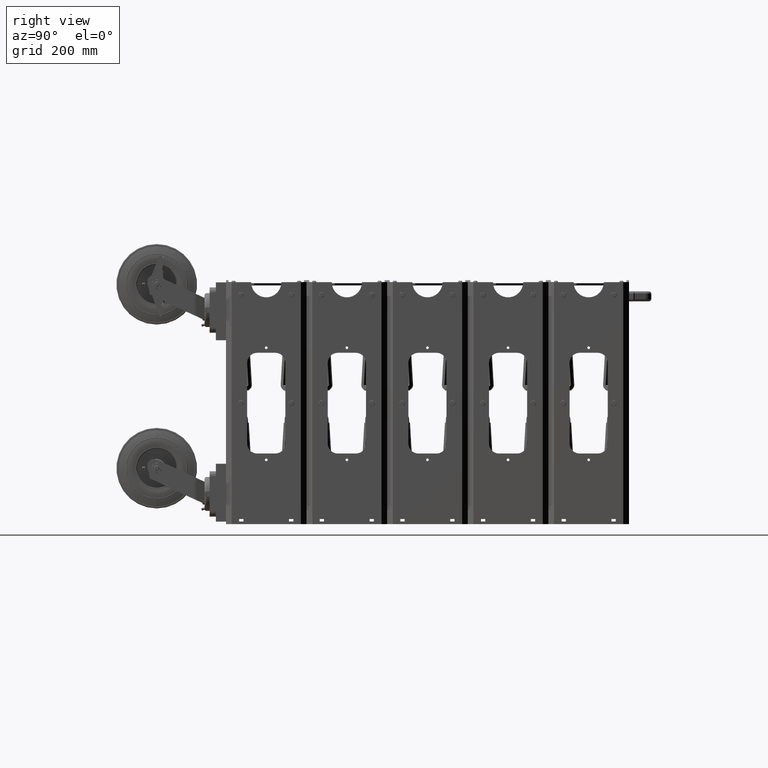
[diagram: clean part render]
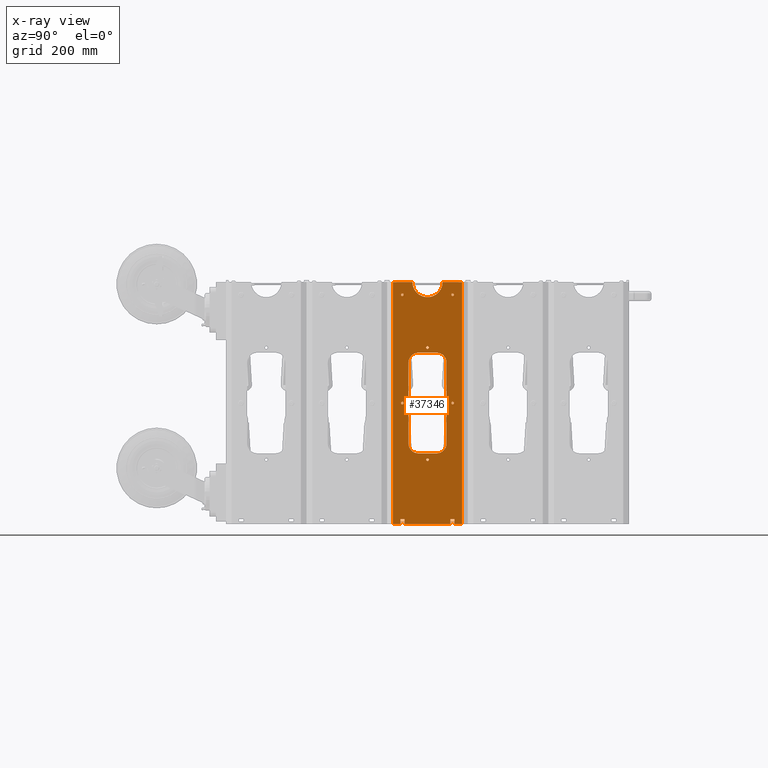
[diagram: x-ray — body ghosted, one internal face saturated and labeled with its STEP entity id]
A machine part, right view, then the same camera in x-ray: the body is ghosted and one INTERNAL B-rep face — a face not visible from any outside direction — is saturated and labeled: STEP entity #37346.
In plain terms, the highlighted planar face has unit normal (-1, 0, 0).
Its self-contained STEP definition (entity closure, byte-faithful):
#203 = EDGE_LOOP ( 'NONE', ( #30047, #30048 ) ) ;
#204 = EDGE_LOOP ( 'NONE', ( #30050, #30052 ) ) ;
#206 = EDGE_LOOP ( 'NONE', ( #30036, #30038 ) ) ;
#221 = EDGE_LOOP ( 'NONE', ( #30044, #30045 ) ) ;
#228 = EDGE_LOOP ( 'NONE', ( #30068, #30069, #30071, #30072, #30074, #30076, #30078, #30079, #30081, #30082, #30084, #30085, #30087, #30088 ) ) ;
#232 = EDGE_LOOP ( 'NONE', ( #30033, #30034 ) ) ;
#237 = EDGE_LOOP ( 'NONE', ( #30040, #30042 ) ) ;
#266 = EDGE_LOOP ( 'NONE', ( #30054, #30056, #30058, #30059, #30061, #30062, #30064, #30066 ) ) ;
#1554 = CARTESIAN_POINT ( 'NONE',  ( 5.682243826821667800E-014, 3.999999999999990200, 5.730000000000000400 ) ) ;
#1556 = DIRECTION ( 'NONE',  ( 4.930380657631323800E-030, -1.000000000000000000, -1.094764425253763300E-047 ) ) ;
#1557 = DIRECTION ( 'NONE',  ( 0.0000000000000000000, 0.0000000000000000000, -1.000000000000000000 ) ) ;
#1564 = CARTESIAN_POINT ( 'NONE',  ( -1.311287036958846300E-013, 3.999999999999990200, -5.394999999999999600 ) ) ;
#1566 = DIRECTION ( 'NONE',  ( 4.930380657631323800E-030, -1.000000000000000000, -1.094764425253763300E-047 ) ) ;
#1567 = DIRECTION ( 'NONE',  ( 0.0000000000000000000, 0.0000000000000000000, -1.000000000000000000 ) ) ;
#1574 = CARTESIAN_POINT ( 'NONE',  ( 2.500000000000070200, 3.999999999999922300, -10.64499999999996000 ) ) ;
#1576 = DIRECTION ( 'NONE',  ( 4.930380657631323800E-030, -1.000000000000000000, -1.094764425253763300E-047 ) ) ;
#1577 = DIRECTION ( 'NONE',  ( 0.0000000000000000000, 0.0000000000000000000, -1.000000000000000000 ) ) ;
#1584 = CARTESIAN_POINT ( 'NONE',  ( -2.499999999999930300, 4.000000000000000900, -10.64500000000003900 ) ) ;
#1586 = DIRECTION ( 'NONE',  ( 4.930380657631323800E-030, -1.000000000000000000, -1.094764425253763300E-047 ) ) ;
#1587 = DIRECTION ( 'NONE',  ( 0.0000000000000000000, 0.0000000000000000000, -1.000000000000000000 ) ) ;
#1594 = CARTESIAN_POINT ( 'NONE',  ( 2.500000000000030600, 3.999999999999922300, 0.1050000000000012000 ) ) ;
#1596 = DIRECTION ( 'NONE',  ( 4.930380657631323800E-030, -1.000000000000000000, -1.094764425253763300E-047 ) ) ;
#1597 = DIRECTION ( 'NONE',  ( 0.0000000000000000000, 0.0000000000000000000, -1.000000000000000000 ) ) ;
#1604 = CARTESIAN_POINT ( 'NONE',  ( -2.499999999999956500, 4.000000000000000900, 0.1050000000000011900 ) ) ;
#1606 = DIRECTION ( 'NONE',  ( 4.930380657631323800E-030, -1.000000000000000000, -1.094764425253763300E-047 ) ) ;
#1607 = DIRECTION ( 'NONE',  ( 0.0000000000000000000, 0.0000000000000000000, -1.000000000000000000 ) ) ;
#1799 = CIRCLE ( 'NONE', #42064, 0.1329999999999999200 ) ;
#1805 = CIRCLE ( 'NONE', #42066, 0.1329999999999999200 ) ;
#1811 = CIRCLE ( 'NONE', #42068, 0.1329999999999999200 ) ;
#1817 = CIRCLE ( 'NONE', #42070, 0.1329999999999999200 ) ;
#1823 = CIRCLE ( 'NONE', #42072, 0.1329999999999997300 ) ;
#1829 = CIRCLE ( 'NONE', #42074, 0.1329999999999997000 ) ;
#1870 = VECTOR ( 'NONE', #3032, 39.37007874015748100 ) ;
#1872 = LINE ( 'NONE', #3031, #1870 ) ;
#1881 = LINE ( 'NONE', #3038, #1886 ) ;
#1886 = VECTOR ( 'NONE', #3042, 39.37007874015748100 ) ;
#1891 = LINE ( 'NONE', #3041, #1893 ) ;
#1892 = CIRCLE ( 'NONE', #42089, 1.000000000000000200 ) ;
#1893 = VECTOR ( 'NONE', #3051, 39.37007874015748100 ) ;
#1898 = CIRCLE ( 'NONE', #42088, 1.000000000000000200 ) ;
#1900 = VECTOR ( 'NONE', #3070, 39.37007874015748100 ) ;
#1902 = LINE ( 'NONE', #3069, #1900 ) ;
#1903 = LINE ( 'NONE', #3061, #1904 ) ;
#1904 = VECTOR ( 'NONE', #3062, 39.37007874015748100 ) ;
#1914 = VECTOR ( 'NONE', #3084, 39.37007874015748100 ) ;
#1915 = LINE ( 'NONE', #3083, #1914 ) ;
#1916 = CIRCLE ( 'NONE', #42092, 1.000000000000000900 ) ;
#1924 = CIRCLE ( 'NONE', #42094, 1.000000000000000200 ) ;
#1931 = CIRCLE ( 'NONE', #42096, 0.1329999999999997000 ) ;
#1932 = CIRCLE ( 'NONE', #42095, 0.1329999999999997300 ) ;
#1934 = CIRCLE ( 'NONE', #42099, 0.1329999999999999200 ) ;
#1935 = CIRCLE ( 'NONE', #42100, 0.1329999999999999200 ) ;
#1939 = CIRCLE ( 'NONE', #42102, 0.1329999999999999200 ) ;
#1943 = CIRCLE ( 'NONE', #42104, 0.1329999999999999200 ) ;
#2023 = LINE ( 'NONE', #3232, #2040 ) ;
#2040 = VECTOR ( 'NONE', #3235, 39.37007874015748100 ) ;
#2041 = VECTOR ( 'NONE', #3272, 39.37007874015748100 ) ;
#2048 = LINE ( 'NONE', #3242, #2049 ) ;
#2049 = VECTOR ( 'NONE', #3243, 39.37007874015748100 ) ;
#2055 = LINE ( 'NONE', #3271, #2041 ) ;
#2056 = LINE ( 'NONE', #3250, #2057 ) ;
#2057 = VECTOR ( 'NONE', #3251, 39.37007874015748100 ) ;
#2064 = LINE ( 'NONE', #3258, #2065 ) ;
#2065 = VECTOR ( 'NONE', #3259, 39.37007874015748100 ) ;
#2073 = LINE ( 'NONE', #3260, #2081 ) ;
#2074 = CIRCLE ( 'NONE', #42107, 1.500000000000000900 ) ;
#2075 = LINE ( 'NONE', #3273, #2076 ) ;
#2076 = VECTOR ( 'NONE', #3274, 39.37007874015748100 ) ;
#2077 = LINE ( 'NONE', #3275, #2078 ) ;
#2078 = VECTOR ( 'NONE', #3276, 39.37007874015748100 ) ;
#2079 = LINE ( 'NONE', #3279, #2080 ) ;
#2080 = VECTOR ( 'NONE', #3281, 39.37007874015748100 ) ;
#2081 = VECTOR ( 'NONE', #3284, 39.37007874015748100 ) ;
#2083 = LINE ( 'NONE', #3287, #2084 ) ;
#2084 = VECTOR ( 'NONE', #3289, 39.37007874015748100 ) ;
#2087 = LINE ( 'NONE', #3296, #2088 ) ;
#2088 = VECTOR ( 'NONE', #3298, 39.37007874015748100 ) ;
#3031 = CARTESIAN_POINT ( 'NONE',  ( -1.894999999999929400, 3.999999999999968500, 4.105000000000010200 ) ) ;
#3032 = DIRECTION ( 'NONE',  ( -2.048885995248197900E-016, 0.0000000000000000000, -1.000000000000000000 ) ) ;
#3038 = CARTESIAN_POINT ( 'NONE',  ( -2.687500000000091900, 4.000000000000000900, 11.60499999999996100 ) ) ;
#3041 = CARTESIAN_POINT ( 'NONE',  ( 2.263499999999871700, 3.999999999999922300, 11.60500000000004000 ) ) ;
#3042 = DIRECTION ( 'NONE',  ( 1.000000000000000000, -4.930380657631323800E-030, 0.0000000000000000000 ) ) ;
#3043 = CARTESIAN_POINT ( 'NONE',  ( -0.8950000000000001300, 3.999999999999990200, -3.895000000000022700 ) ) ;
#3045 = DIRECTION ( 'NONE',  ( 4.930380657631323800E-030, -1.000000000000000000, -1.094764425253763300E-047 ) ) ;
#3046 = DIRECTION ( 'NONE',  ( 0.0000000000000000000, 0.0000000000000000000, 1.000000000000000000 ) ) ;
#3050 = CARTESIAN_POINT ( 'NONE',  ( 0.8950000000000045700, 3.999999999999950700, -3.894999999999977800 ) ) ;
#3051 = DIRECTION ( 'NONE',  ( 1.000000000000000000, -4.930380657631323800E-030, 0.0000000000000000000 ) ) ;
#3054 = DIRECTION ( 'NONE',  ( 4.930380657631323800E-030, -1.000000000000000000, -1.094764425253763300E-047 ) ) ;
#3055 = DIRECTION ( 'NONE',  ( 0.0000000000000000000, 0.0000000000000000000, -1.000000000000000000 ) ) ;
#3061 = CARTESIAN_POINT ( 'NONE',  ( -0.8950000000000001300, 3.999999999999990200, -4.895000000000022700 ) ) ;
#3062 = DIRECTION ( 'NONE',  ( 1.000000000000000000, -4.930380657631323800E-030, 0.0000000000000000000 ) ) ;
#3069 = CARTESIAN_POINT ( 'NONE',  ( 1.895000000000069300, 3.999999999999922300, 4.104999999999990700 ) ) ;
#3070 = DIRECTION ( 'NONE',  ( 0.0000000000000000000, 0.0000000000000000000, 1.000000000000000000 ) ) ;
#3073 = CARTESIAN_POINT ( 'NONE',  ( 0.8950000000000700700, 3.999999999999950700, 4.105000000000020000 ) ) ;
#3075 = DIRECTION ( 'NONE',  ( 4.930380657631323800E-030, -1.000000000000000000, -1.094764425253763300E-047 ) ) ;
#3076 = DIRECTION ( 'NONE',  ( 0.0000000000000000000, 0.0000000000000000000, -1.000000000000000000 ) ) ;
#3083 = CARTESIAN_POINT ( 'NONE',  ( -0.8949999999999432900, 3.999999999999990200, 5.104999999999980900 ) ) ;
#3084 = DIRECTION ( 'NONE',  ( -1.000000000000000000, 4.930380657631323800E-030, -6.104688253998350900E-016 ) ) ;
#3087 = CARTESIAN_POINT ( 'NONE',  ( -0.8949999999999301800, 3.999999999999990200, 4.104999999999974700 ) ) ;
#3089 = DIRECTION ( 'NONE',  ( 4.930380657631323800E-030, -1.000000000000000000, -1.094764425253763300E-047 ) ) ;
#3090 = DIRECTION ( 'NONE',  ( 0.0000000000000000000, 0.0000000000000000000, 1.000000000000000000 ) ) ;
#3100 = CARTESIAN_POINT ( 'NONE',  ( 2.500000000000030600, 3.999999999999922300, 0.1050000000000012000 ) ) ;
#3103 = CARTESIAN_POINT ( 'NONE',  ( -2.499999999999956500, 4.000000000000000900, 0.1050000000000011900 ) ) ;
#3106 = DIRECTION ( 'NONE',  ( 4.930380657631323800E-030, -1.000000000000000000, -1.094764425253763300E-047 ) ) ;
#3107 = DIRECTION ( 'NONE',  ( 0.0000000000000000000, 0.0000000000000000000, -1.000000000000000000 ) ) ;
#3108 = CARTESIAN_POINT ( 'NONE',  ( -2.499999999999930300, 4.000000000000000900, -10.64500000000003900 ) ) ;
#3109 = DIRECTION ( 'NONE',  ( 4.930380657631323800E-030, -1.000000000000000000, -1.094764425253763300E-047 ) ) ;
#3110 = DIRECTION ( 'NONE',  ( 0.0000000000000000000, 0.0000000000000000000, -1.000000000000000000 ) ) ;
#3111 = CARTESIAN_POINT ( 'NONE',  ( 2.500000000000070200, 3.999999999999922300, -10.64499999999996000 ) ) ;
#3115 = DIRECTION ( 'NONE',  ( 4.930380657631323800E-030, -1.000000000000000000, -1.094764425253763300E-047 ) ) ;
#3116 = DIRECTION ( 'NONE',  ( 0.0000000000000000000, 0.0000000000000000000, -1.000000000000000000 ) ) ;
#3117 = CARTESIAN_POINT ( 'NONE',  ( -1.311287036958846300E-013, 3.999999999999990200, -5.394999999999999600 ) ) ;
#3118 = DIRECTION ( 'NONE',  ( 4.930380657631323800E-030, -1.000000000000000000, -1.094764425253763300E-047 ) ) ;
#3119 = DIRECTION ( 'NONE',  ( 0.0000000000000000000, 0.0000000000000000000, -1.000000000000000000 ) ) ;
#3123 = CARTESIAN_POINT ( 'NONE',  ( 5.682243826821667800E-014, 3.999999999999990200, 5.730000000000000400 ) ) ;
#3124 = DIRECTION ( 'NONE',  ( 4.930380657631323800E-030, -1.000000000000000000, -1.094764425253763300E-047 ) ) ;
#3125 = DIRECTION ( 'NONE',  ( 0.0000000000000000000, 0.0000000000000000000, -1.000000000000000000 ) ) ;
#3129 = DIRECTION ( 'NONE',  ( 4.930380657631323800E-030, -1.000000000000000000, -1.094764425253763300E-047 ) ) ;
#3130 = DIRECTION ( 'NONE',  ( 0.0000000000000000000, 0.0000000000000000000, -1.000000000000000000 ) ) ;
#3232 = CARTESIAN_POINT ( 'NONE',  ( -2.687500000000091900, 4.000000000000000900, 12.10499999999996100 ) ) ;
#3235 = DIRECTION ( 'NONE',  ( 0.0000000000000000000, 0.0000000000000000000, -1.000000000000000000 ) ) ;
#3242 = CARTESIAN_POINT ( 'NONE',  ( -2.263500000000090200, 4.000000000000000900, 12.10499999999996100 ) ) ;
#3243 = DIRECTION ( 'NONE',  ( 5.463695987328531400E-016, -2.189528850507526700E-045, 1.000000000000000000 ) ) ;
#3250 = CARTESIAN_POINT ( 'NONE',  ( 2.263499999999871700, 3.999999999999922300, 12.10500000000004000 ) ) ;
#3251 = DIRECTION ( 'NONE',  ( 5.463695987328531400E-016, -4.368110056762515700E-045, -1.000000000000000000 ) ) ;
#3258 = CARTESIAN_POINT ( 'NONE',  ( 2.687499999999869000, 3.999999999999922300, 12.10500000000004000 ) ) ;
#3259 = DIRECTION ( 'NONE',  ( 0.0000000000000000000, 0.0000000000000000000, 1.000000000000000000 ) ) ;
#3260 = CARTESIAN_POINT ( 'NONE',  ( -3.437500000000101300, 3.999999999999996900, 12.10499999999992000 ) ) ;
#3263 = CARTESIAN_POINT ( 'NONE',  ( 5.245148147835385400E-014, 3.999999999999990200, -11.89500000000000000 ) ) ;
#3269 = DIRECTION ( 'NONE',  ( 4.930380657631323800E-030, -1.000000000000000000, -1.094764425253763300E-047 ) ) ;
#3270 = DIRECTION ( 'NONE',  ( 0.0000000000000000000, 0.0000000000000000000, -1.000000000000000000 ) ) ;
#3271 = CARTESIAN_POINT ( 'NONE',  ( -3.999999999999952900, 4.000000000000014200, -11.89500000000007800 ) ) ;
#3272 = DIRECTION ( 'NONE',  ( 1.000000000000000000, -4.930380657631323800E-030, 0.0000000000000000000 ) ) ;
#3273 = CARTESIAN_POINT ( 'NONE',  ( 3.437499999999873900, 3.999999999999948500, 12.10500000000010000 ) ) ;
#3274 = DIRECTION ( 'NONE',  ( 0.0000000000000000000, 0.0000000000000000000, -1.000000000000000000 ) ) ;
#3275 = CARTESIAN_POINT ( 'NONE',  ( -4.000000000000101300, 4.000000000000009800, 12.10499999999992000 ) ) ;
#3276 = DIRECTION ( 'NONE',  ( -1.000000000000000000, 4.930380657631323800E-030, 0.0000000000000000000 ) ) ;
#3279 = CARTESIAN_POINT ( 'NONE',  ( -3.999999999999952900, 4.000000000000014200, -11.89500000000007800 ) ) ;
#3281 = DIRECTION ( 'NONE',  ( 1.000000000000000000, -4.930380657631323800E-030, 0.0000000000000000000 ) ) ;
#3284 = DIRECTION ( 'NONE',  ( 0.0000000000000000000, 0.0000000000000000000, 1.000000000000000000 ) ) ;
#3287 = CARTESIAN_POINT ( 'NONE',  ( -4.000000000000101300, 4.000000000000009800, 12.10499999999992000 ) ) ;
#3289 = DIRECTION ( 'NONE',  ( -1.000000000000000000, 4.930380657631323800E-030, 0.0000000000000000000 ) ) ;
#3296 = CARTESIAN_POINT ( 'NONE',  ( -4.000000000000101300, 4.000000000000009800, 12.10499999999992000 ) ) ;
#3298 = DIRECTION ( 'NONE',  ( -1.000000000000000000, 4.930380657631323800E-030, 0.0000000000000000000 ) ) ;
#5846 = CARTESIAN_POINT ( 'NONE',  ( -4.000000000000101300, 4.000000000000009800, 12.10499999999992000 ) ) ;
#5851 = PLANE ( 'NONE',  #42559 ) ;
#5852 = DIRECTION ( 'NONE',  ( 4.930380657631323800E-030, -1.000000000000000000, 0.0000000000000000000 ) ) ;
#5853 = DIRECTION ( 'NONE',  ( 0.0000000000000000000, 0.0000000000000000000, -1.000000000000000000 ) ) ;
#6273 = FACE_BOUND ( 'NONE', #203, .T. ) ;
#6275 = FACE_BOUND ( 'NONE', #232, .T. ) ;
#6276 = FACE_BOUND ( 'NONE', #204, .T. ) ;
#6277 = FACE_BOUND ( 'NONE', #206, .T. ) ;
#6278 = FACE_BOUND ( 'NONE', #266, .T. ) ;
#6279 = FACE_BOUND ( 'NONE', #237, .T. ) ;
#6280 = FACE_OUTER_BOUND ( 'NONE', #228, .T. ) ;
#6281 = FACE_BOUND ( 'NONE', #221, .T. ) ;
#18154 = VERTEX_POINT ( 'NONE', #33335 ) ;
#18155 = VERTEX_POINT ( 'NONE', #33336 ) ;
#18158 = VERTEX_POINT ( 'NONE', #33339 ) ;
#18159 = VERTEX_POINT ( 'NONE', #33340 ) ;
#18162 = VERTEX_POINT ( 'NONE', #33343 ) ;
#18163 = VERTEX_POINT ( 'NONE', #33344 ) ;
#18166 = VERTEX_POINT ( 'NONE', #33347 ) ;
#18167 = VERTEX_POINT ( 'NONE', #33348 ) ;
#18170 = VERTEX_POINT ( 'NONE', #33351 ) ;
#18171 = VERTEX_POINT ( 'NONE', #33352 ) ;
#18174 = VERTEX_POINT ( 'NONE', #33355 ) ;
#18175 = VERTEX_POINT ( 'NONE', #33356 ) ;
#18202 = VERTEX_POINT ( 'NONE', #33383 ) ;
#18203 = VERTEX_POINT ( 'NONE', #33384 ) ;
#18206 = VERTEX_POINT ( 'NONE', #33387 ) ;
#18207 = VERTEX_POINT ( 'NONE', #33388 ) ;
#18212 = VERTEX_POINT ( 'NONE', #33393 ) ;
#18213 = VERTEX_POINT ( 'NONE', #33394 ) ;
#18215 = VERTEX_POINT ( 'NONE', #33396 ) ;
#18217 = VERTEX_POINT ( 'NONE', #33398 ) ;
#18219 = VERTEX_POINT ( 'NONE', #33400 ) ;
#18514 = VERTEX_POINT ( 'NONE', #33695 ) ;
#18516 = VERTEX_POINT ( 'NONE', #33697 ) ;
#18518 = VERTEX_POINT ( 'NONE', #33699 ) ;
#18549 = VERTEX_POINT ( 'NONE', #33730 ) ;
#18552 = VERTEX_POINT ( 'NONE', #33733 ) ;
#18555 = VERTEX_POINT ( 'NONE', #33736 ) ;
#18558 = VERTEX_POINT ( 'NONE', #33739 ) ;
#18564 = VERTEX_POINT ( 'NONE', #33745 ) ;
#18565 = VERTEX_POINT ( 'NONE', #33746 ) ;
#18566 = VERTEX_POINT ( 'NONE', #33747 ) ;
#18567 = VERTEX_POINT ( 'NONE', #33748 ) ;
#18568 = VERTEX_POINT ( 'NONE', #33749 ) ;
#18569 = VERTEX_POINT ( 'NONE', #33750 ) ;
#28831 = EDGE_CURVE ( 'NONE', #18154, #18155, #1799, .T. ) ;
#28835 = EDGE_CURVE ( 'NONE', #18158, #18159, #1805, .T. ) ;
#28839 = EDGE_CURVE ( 'NONE', #18162, #18163, #1811, .T. ) ;
#28843 = EDGE_CURVE ( 'NONE', #18166, #18167, #1817, .T. ) ;
#28847 = EDGE_CURVE ( 'NONE', #18170, #18171, #1823, .T. ) ;
#28851 = EDGE_CURVE ( 'NONE', #18174, #18175, #1829, .T. ) ;
#28883 = EDGE_CURVE ( 'NONE', #18213, #18212, #1872, .T. ) ;
#28887 = EDGE_CURVE ( 'NONE', #18202, #18203, #1881, .T. ) ;
#28889 = EDGE_CURVE ( 'NONE', #18212, #18215, #1892, .T. ) ;
#28891 = EDGE_CURVE ( 'NONE', #18206, #18207, #1891, .T. ) ;
#28893 = EDGE_CURVE ( 'NONE', #18217, #18219, #1898, .T. ) ;
#28897 = EDGE_CURVE ( 'NONE', #18215, #18217, #1903, .T. ) ;
#28900 = EDGE_CURVE ( 'NONE', #18219, #18514, #1902, .T. ) ;
#28903 = EDGE_CURVE ( 'NONE', #18514, #18516, #1916, .T. ) ;
#28906 = EDGE_CURVE ( 'NONE', #18516, #18518, #1915, .T. ) ;
#28909 = EDGE_CURVE ( 'NONE', #18518, #18213, #1924, .T. ) ;
#28915 = EDGE_CURVE ( 'NONE', #18175, #18174, #1931, .T. ) ;
#28916 = EDGE_CURVE ( 'NONE', #18171, #18170, #1932, .T. ) ;
#28918 = EDGE_CURVE ( 'NONE', #18167, #18166, #1934, .T. ) ;
#28919 = EDGE_CURVE ( 'NONE', #18163, #18162, #1935, .T. ) ;
#28921 = EDGE_CURVE ( 'NONE', #18159, #18158, #1939, .T. ) ;
#28923 = EDGE_CURVE ( 'NONE', #18155, #18154, #1943, .T. ) ;
#28974 = EDGE_CURVE ( 'NONE', #18549, #18202, #2023, .T. ) ;
#28978 = EDGE_CURVE ( 'NONE', #18203, #18552, #2048, .T. ) ;
#28982 = EDGE_CURVE ( 'NONE', #18555, #18206, #2056, .T. ) ;
#28986 = EDGE_CURVE ( 'NONE', #18207, #18558, #2064, .T. ) ;
#28991 = EDGE_CURVE ( 'NONE', #18566, #18567, #2074, .T. ) ;
#28992 = EDGE_CURVE ( 'NONE', #18566, #18565, #2055, .T. ) ;
#28993 = EDGE_CURVE ( 'NONE', #18564, #18565, #2075, .T. ) ;
#28994 = EDGE_CURVE ( 'NONE', #18564, #18558, #2077, .T. ) ;
#28995 = EDGE_CURVE ( 'NONE', #18568, #18567, #2079, .T. ) ;
#28996 = EDGE_CURVE ( 'NONE', #18568, #18569, #2073, .T. ) ;
#28997 = EDGE_CURVE ( 'NONE', #18549, #18569, #2083, .T. ) ;
#28999 = EDGE_CURVE ( 'NONE', #18555, #18552, #2087, .T. ) ;
#30033 = ORIENTED_EDGE ( 'NONE', *, *, #28923, .T. ) ;
#30034 = ORIENTED_EDGE ( 'NONE', *, *, #28831, .T. ) ;
#30036 = ORIENTED_EDGE ( 'NONE', *, *, #28921, .T. ) ;
#30038 = ORIENTED_EDGE ( 'NONE', *, *, #28835, .T. ) ;
#30040 = ORIENTED_EDGE ( 'NONE', *, *, #28919, .T. ) ;
#30042 = ORIENTED_EDGE ( 'NONE', *, *, #28839, .T. ) ;
#30044 = ORIENTED_EDGE ( 'NONE', *, *, #28918, .T. ) ;
#30045 = ORIENTED_EDGE ( 'NONE', *, *, #28843, .T. ) ;
#30047 = ORIENTED_EDGE ( 'NONE', *, *, #28916, .T. ) ;
#30048 = ORIENTED_EDGE ( 'NONE', *, *, #28847, .T. ) ;
#30050 = ORIENTED_EDGE ( 'NONE', *, *, #28915, .T. ) ;
#30052 = ORIENTED_EDGE ( 'NONE', *, *, #28851, .T. ) ;
#30054 = ORIENTED_EDGE ( 'NONE', *, *, #28906, .T. ) ;
#30056 = ORIENTED_EDGE ( 'NONE', *, *, #28909, .T. ) ;
#30058 = ORIENTED_EDGE ( 'NONE', *, *, #28883, .T. ) ;
#30059 = ORIENTED_EDGE ( 'NONE', *, *, #28889, .T. ) ;
#30061 = ORIENTED_EDGE ( 'NONE', *, *, #28897, .T. ) ;
#30062 = ORIENTED_EDGE ( 'NONE', *, *, #28893, .T. ) ;
#30064 = ORIENTED_EDGE ( 'NONE', *, *, #28900, .T. ) ;
#30066 = ORIENTED_EDGE ( 'NONE', *, *, #28903, .T. ) ;
#30068 = ORIENTED_EDGE ( 'NONE', *, *, #28982, .T. ) ;
#30069 = ORIENTED_EDGE ( 'NONE', *, *, #28891, .T. ) ;
#30071 = ORIENTED_EDGE ( 'NONE', *, *, #28986, .T. ) ;
#30072 = ORIENTED_EDGE ( 'NONE', *, *, #28994, .F. ) ;
#30074 = ORIENTED_EDGE ( 'NONE', *, *, #28993, .T. ) ;
#30076 = ORIENTED_EDGE ( 'NONE', *, *, #28992, .F. ) ;
#30078 = ORIENTED_EDGE ( 'NONE', *, *, #28991, .T. ) ;
#30079 = ORIENTED_EDGE ( 'NONE', *, *, #28995, .F. ) ;
#30081 = ORIENTED_EDGE ( 'NONE', *, *, #28996, .T. ) ;
#30082 = ORIENTED_EDGE ( 'NONE', *, *, #28997, .F. ) ;
#30084 = ORIENTED_EDGE ( 'NONE', *, *, #28974, .T. ) ;
#30085 = ORIENTED_EDGE ( 'NONE', *, *, #28887, .T. ) ;
#30087 = ORIENTED_EDGE ( 'NONE', *, *, #28978, .T. ) ;
#30088 = ORIENTED_EDGE ( 'NONE', *, *, #28999, .F. ) ;
#33335 = CARTESIAN_POINT ( 'NONE',  ( 5.683872607064533700E-014, 3.999999999999990200, 5.863000000000000400 ) ) ;
#33336 = CARTESIAN_POINT ( 'NONE',  ( 5.682243826821667800E-014, 3.999999999999990200, 5.597000000000000400 ) ) ;
#33339 = CARTESIAN_POINT ( 'NONE',  ( -1.311124158934559700E-013, 3.999999999999990200, -5.261999999999999600 ) ) ;
#33340 = CARTESIAN_POINT ( 'NONE',  ( -1.311287036958846300E-013, 3.999999999999990200, -5.527999999999999600 ) ) ;
#33343 = CARTESIAN_POINT ( 'NONE',  ( 2.500000000000070200, 3.999999999999922300, -10.51199999999996000 ) ) ;
#33344 = CARTESIAN_POINT ( 'NONE',  ( 2.500000000000070200, 3.999999999999922300, -10.77799999999996000 ) ) ;
#33347 = CARTESIAN_POINT ( 'NONE',  ( -2.499999999999930300, 4.000000000000000900, -10.51200000000004000 ) ) ;
#33348 = CARTESIAN_POINT ( 'NONE',  ( -2.499999999999930300, 4.000000000000000900, -10.77800000000004000 ) ) ;
#33351 = CARTESIAN_POINT ( 'NONE',  ( 2.500000000000030600, 3.999999999999922300, 0.2380000000000009600 ) ) ;
#33352 = CARTESIAN_POINT ( 'NONE',  ( 2.500000000000030600, 3.999999999999922300, -0.02799999999999853000 ) ) ;
#33355 = CARTESIAN_POINT ( 'NONE',  ( -2.499999999999956500, 4.000000000000000900, 0.2380000000000009100 ) ) ;
#33356 = CARTESIAN_POINT ( 'NONE',  ( -2.499999999999956500, 4.000000000000000900, -0.02799999999999853000 ) ) ;
#33383 = CARTESIAN_POINT ( 'NONE',  ( -2.687500000000091900, 4.000000000000000900, 11.60499999999996100 ) ) ;
#33384 = CARTESIAN_POINT ( 'NONE',  ( -2.263500000000129700, 4.000000000000000900, 11.60499999999996100 ) ) ;
#33387 = CARTESIAN_POINT ( 'NONE',  ( 2.263499999999871700, 3.999999999999922300, 11.60500000000004000 ) ) ;
#33388 = CARTESIAN_POINT ( 'NONE',  ( 2.687499999999869000, 3.999999999999922300, 11.60500000000004000 ) ) ;
#33393 = CARTESIAN_POINT ( 'NONE',  ( -1.894999999999999400, 3.999999999999968500, -3.894999999999988000 ) ) ;
#33394 = CARTESIAN_POINT ( 'NONE',  ( -1.894999999999929400, 3.999999999999968500, 4.105000000000010200 ) ) ;
#33396 = CARTESIAN_POINT ( 'NONE',  ( -0.8950000000000001300, 3.999999999999990200, -4.895000000000022700 ) ) ;
#33398 = CARTESIAN_POINT ( 'NONE',  ( 0.8949999999999958000, 3.999999999999950700, -4.894999999999978300 ) ) ;
#33400 = CARTESIAN_POINT ( 'NONE',  ( 1.894999999999977400, 3.999999999999922300, -3.895000000000000500 ) ) ;
#33695 = CARTESIAN_POINT ( 'NONE',  ( 1.895000000000069300, 3.999999999999922300, 4.104999999999990700 ) ) ;
#33697 = CARTESIAN_POINT ( 'NONE',  ( 0.8950000000000569700, 3.999999999999950700, 5.105000000000032400 ) ) ;
#33699 = CARTESIAN_POINT ( 'NONE',  ( -0.8949999999999432900, 3.999999999999990200, 5.104999999999980900 ) ) ;
#33730 = CARTESIAN_POINT ( 'NONE',  ( -2.687500000000091900, 4.000000000000000900, 12.10499999999996100 ) ) ;
#33733 = CARTESIAN_POINT ( 'NONE',  ( -2.263500000000090200, 4.000000000000000900, 12.10499999999996100 ) ) ;
#33736 = CARTESIAN_POINT ( 'NONE',  ( 2.263499999999871700, 3.999999999999922300, 12.10500000000004000 ) ) ;
#33739 = CARTESIAN_POINT ( 'NONE',  ( 2.687499999999869000, 3.999999999999922300, 12.10500000000004000 ) ) ;
#33745 = CARTESIAN_POINT ( 'NONE',  ( 3.437499999999878300, 3.999999999999948500, 12.10500000000010000 ) ) ;
#33746 = CARTESIAN_POINT ( 'NONE',  ( 3.437500000000035500, 3.999999999999948500, -11.89499999999990000 ) ) ;
#33747 = CARTESIAN_POINT ( 'NONE',  ( 1.500000000000040200, 3.999999999999974700, -11.89499999999996000 ) ) ;
#33748 = CARTESIAN_POINT ( 'NONE',  ( -1.499999999999961600, 3.999999999999968500, -11.89500000000003900 ) ) ;
#33749 = CARTESIAN_POINT ( 'NONE',  ( -3.437499999999952500, 4.000000000000000900, -11.89500000000007800 ) ) ;
#33750 = CARTESIAN_POINT ( 'NONE',  ( -3.437500000000101300, 4.000000000000000900, 12.10499999999992000 ) ) ;
#37346 = ADVANCED_FACE ( 'NONE', ( #6275, #6277, #6279, #6281, #6273, #6276, #6278, #6280 ), #5851, .F. ) ;
#42064 = AXIS2_PLACEMENT_3D ( 'NONE', #1554, #1556, #1557 ) ;
#42066 = AXIS2_PLACEMENT_3D ( 'NONE', #1564, #1566, #1567 ) ;
#42068 = AXIS2_PLACEMENT_3D ( 'NONE', #1574, #1576, #1577 ) ;
#42070 = AXIS2_PLACEMENT_3D ( 'NONE', #1584, #1586, #1587 ) ;
#42072 = AXIS2_PLACEMENT_3D ( 'NONE', #1594, #1596, #1597 ) ;
#42074 = AXIS2_PLACEMENT_3D ( 'NONE', #1604, #1606, #1607 ) ;
#42088 = AXIS2_PLACEMENT_3D ( 'NONE', #3050, #3054, #3055 ) ;
#42089 = AXIS2_PLACEMENT_3D ( 'NONE', #3043, #3045, #3046 ) ;
#42092 = AXIS2_PLACEMENT_3D ( 'NONE', #3073, #3075, #3076 ) ;
#42094 = AXIS2_PLACEMENT_3D ( 'NONE', #3087, #3089, #3090 ) ;
#42095 = AXIS2_PLACEMENT_3D ( 'NONE', #3100, #3109, #3110 ) ;
#42096 = AXIS2_PLACEMENT_3D ( 'NONE', #3103, #3106, #3107 ) ;
#42099 = AXIS2_PLACEMENT_3D ( 'NONE', #3108, #3115, #3116 ) ;
#42100 = AXIS2_PLACEMENT_3D ( 'NONE', #3111, #3118, #3119 ) ;
#42102 = AXIS2_PLACEMENT_3D ( 'NONE', #3117, #3124, #3125 ) ;
#42104 = AXIS2_PLACEMENT_3D ( 'NONE', #3123, #3129, #3130 ) ;
#42107 = AXIS2_PLACEMENT_3D ( 'NONE', #3263, #3269, #3270 ) ;
#42559 = AXIS2_PLACEMENT_3D ( 'NONE', #5846, #5852, #5853 ) ;